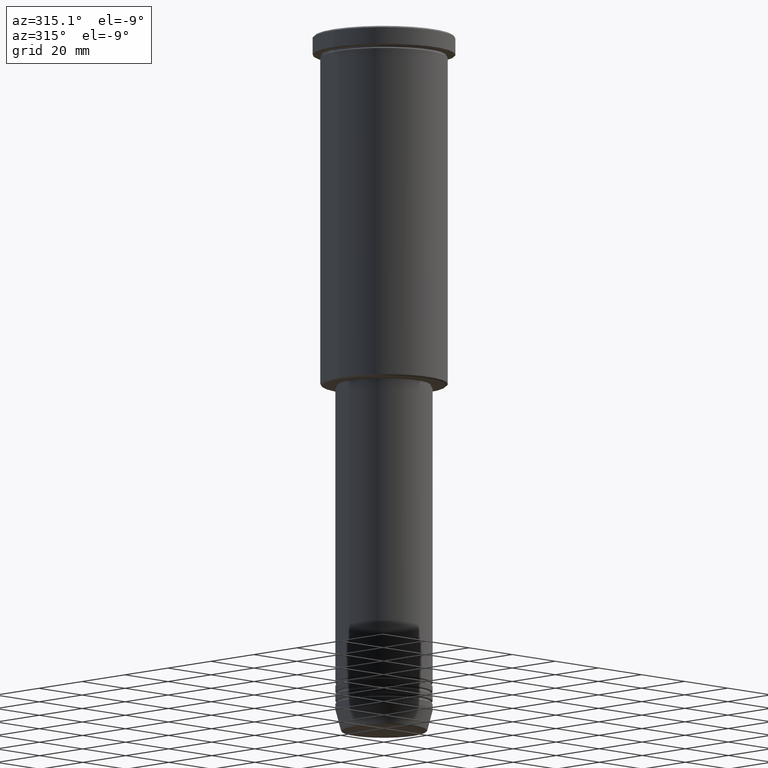
[diagram: clean part render]
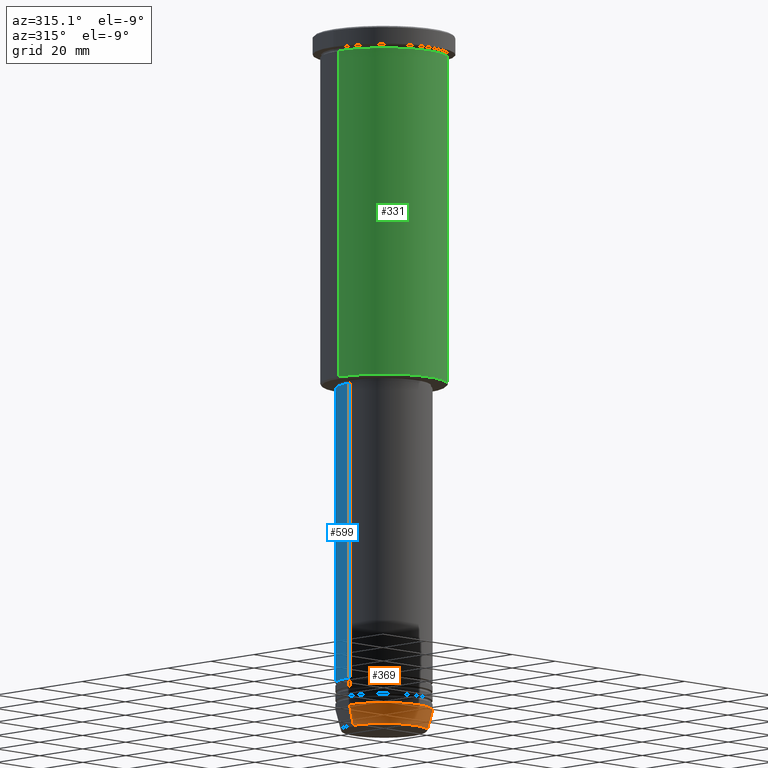
[diagram: same view with three faces highlighted in distinct colors, each labeled with its STEP entity id]
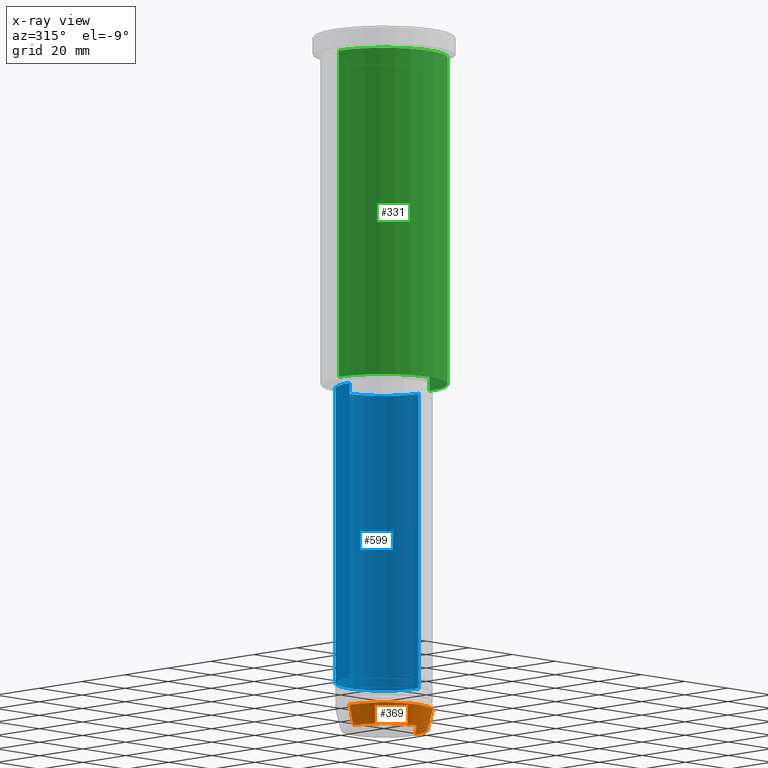
[diagram: x-ray of the same camera — body ghosted, the three highlighted faces saturated]
A machine part, auxiliary view with three faces highlighted in distinct colors.
The next image is the same camera in x-ray (body ghosted, the three faces saturated) — at least one of them is partly hidden behind the body in this view.
Their STEP definitions:

[orange] entity #369 — the highlighted conical surface has half-angle 15 deg.
#12 = VERTEX_POINT ( 'NONE', #18 ) ;
#18 = CARTESIAN_POINT ( 'NONE',  ( 16.00000000000000000, 0.000000000000000000, -224.0000000000000000 ) ) ;
#40 = DIRECTION ( 'NONE',  ( 1.000000000000000000, 0.000000000000000000, 0.000000000000000000 ) ) ;
#50 = DIRECTION ( 'NONE',  ( 0.2588190451025213501, 0.000000000000000000, 0.9659258262890680902 ) ) ;
#79 = EDGE_CURVE ( 'NONE', #115, #342, #787, .T. ) ;
#87 = CARTESIAN_POINT ( 'NONE',  ( -14.22365507213719660, 1.850665122131324126E-15, -230.6294095225512706 ) ) ;
#115 = VERTEX_POINT ( 'NONE', #87 ) ;
#133 = CARTESIAN_POINT ( 'NONE',  ( 0.000000000000000000, 0.000000000000000000, -224.0000000000000000 ) ) ;
#142 = CARTESIAN_POINT ( 'NONE',  ( -16.00000000000000000, 1.959434878635765131E-15, -224.0000000000000000 ) ) ;
#179 = VERTEX_POINT ( 'NONE', #990 ) ;
#243 = DIRECTION ( 'NONE',  ( -0.2588190451025213501, 3.169619151431772337E-17, 0.9659258262890680902 ) ) ;
#303 = VECTOR ( 'NONE', #243, 1000.000000000000000 ) ;
#314 = CARTESIAN_POINT ( 'NONE',  ( 0.000000000000000000, 0.000000000000000000, -224.0000000000000000 ) ) ;
#315 = EDGE_CURVE ( 'NONE', #342, #12, #367, .T. ) ;
#327 = AXIS2_PLACEMENT_3D ( 'NONE', #1039, #406, #40 ) ;
#342 = VERTEX_POINT ( 'NONE', #142 ) ;
#345 = EDGE_CURVE ( 'NONE', #115, #179, #980, .T. ) ;
#367 = CIRCLE ( 'NONE', #904, 16.00000000000000000 ) ;
#369 = ADVANCED_FACE ( 'NONE', ( #500 ), #404, .T. ) ;
#402 = EDGE_CURVE ( 'NONE', #179, #12, #414, .T. ) ;
#404 = CONICAL_SURFACE ( 'NONE', #770, 16.00000000000000000, 0.2617993877991500740 ) ;
#406 = DIRECTION ( 'NONE',  ( -0.000000000000000000, -0.000000000000000000, 1.000000000000000000 ) ) ;
#414 = LINE ( 'NONE', #514, #1033 ) ;
#468 = ORIENTED_EDGE ( 'NONE', *, *, #315, .F. ) ;
#500 = FACE_OUTER_BOUND ( 'NONE', #1014, .T. ) ;
#514 = CARTESIAN_POINT ( 'NONE',  ( 16.00000000000000000, 0.000000000000000000, -224.0000000000000000 ) ) ;
#577 = DIRECTION ( 'NONE',  ( 1.000000000000000000, 0.000000000000000000, 0.000000000000000000 ) ) ;
#605 = DIRECTION ( 'NONE',  ( -0.000000000000000000, -0.000000000000000000, 1.000000000000000000 ) ) ;
#686 = ORIENTED_EDGE ( 'NONE', *, *, #345, .T. ) ;
#770 = AXIS2_PLACEMENT_3D ( 'NONE', #314, #1117, #577 ) ;
#787 = LINE ( 'NONE', #1146, #303 ) ;
#816 = ORIENTED_EDGE ( 'NONE', *, *, #402, .T. ) ;
#904 = AXIS2_PLACEMENT_3D ( 'NONE', #133, #605, #1046 ) ;
#980 = CIRCLE ( 'NONE', #327, 14.22365507213719660 ) ;
#990 = CARTESIAN_POINT ( 'NONE',  ( 14.22365507213719660, 0.000000000000000000, -230.6294095225512706 ) ) ;
#1014 = EDGE_LOOP ( 'NONE', ( #1095, #686, #816, #468 ) ) ;
#1033 = VECTOR ( 'NONE', #50, 1000.000000000000000 ) ;
#1039 = CARTESIAN_POINT ( 'NONE',  ( 0.000000000000000000, 0.000000000000000000, -230.6294095225512706 ) ) ;
#1046 = DIRECTION ( 'NONE',  ( 1.000000000000000000, 0.000000000000000000, 0.000000000000000000 ) ) ;
#1095 = ORIENTED_EDGE ( 'NONE', *, *, #79, .F. ) ;
#1117 = DIRECTION ( 'NONE',  ( -0.000000000000000000, -0.000000000000000000, 1.000000000000000000 ) ) ;
#1146 = CARTESIAN_POINT ( 'NONE',  ( -16.00000000000000000, 1.959434878635765131E-15, -224.0000000000000000 ) ) ;

[blue] entity #599 — the highlighted cylindrical surface (partial cylindrical patch) has radius 16 mm, axis along (-0, -0, 1).
#47 = VERTEX_POINT ( 'NONE', #1003 ) ;
#116 = VECTOR ( 'NONE', #1015, 1000.000000000000000 ) ;
#141 = DIRECTION ( 'NONE',  ( -0.000000000000000000, -0.000000000000000000, 1.000000000000000000 ) ) ;
#155 = CIRCLE ( 'NONE', #1052, 16.00000000000000000 ) ;
#166 = ORIENTED_EDGE ( 'NONE', *, *, #635, .T. ) ;
#213 = AXIS2_PLACEMENT_3D ( 'NONE', #1069, #240, #694 ) ;
#217 = VERTEX_POINT ( 'NONE', #757 ) ;
#238 = CIRCLE ( 'NONE', #1004, 16.00000000000000000 ) ;
#240 = DIRECTION ( 'NONE',  ( -0.000000000000000000, -0.000000000000000000, 1.000000000000000000 ) ) ;
#281 = EDGE_CURVE ( 'NONE', #47, #914, #155, .T. ) ;
#317 = ORIENTED_EDGE ( 'NONE', *, *, #1139, .F. ) ;
#350 = EDGE_LOOP ( 'NONE', ( #714, #166, #317, #377 ) ) ;
#356 = CARTESIAN_POINT ( 'NONE',  ( -16.00000000000000000, 1.959434878635765131E-15, 0.000000000000000000 ) ) ;
#377 = ORIENTED_EDGE ( 'NONE', *, *, #992, .F. ) ;
#408 = DIRECTION ( 'NONE',  ( 1.000000000000000000, 0.000000000000000000, 0.000000000000000000 ) ) ;
#453 = CYLINDRICAL_SURFACE ( 'NONE', #213, 16.00000000000000000 ) ;
#477 = CARTESIAN_POINT ( 'NONE',  ( 0.000000000000000000, 0.000000000000000000, -117.0000000000000000 ) ) ;
#533 = CARTESIAN_POINT ( 'NONE',  ( 16.00000000000000000, 0.000000000000000000, 0.000000000000000000 ) ) ;
#563 = VECTOR ( 'NONE', #141, 1000.000000000000000 ) ;
#599 = ADVANCED_FACE ( 'NONE', ( #1142 ), #453, .T. ) ;
#635 = EDGE_CURVE ( 'NONE', #914, #217, #722, .T. ) ;
#674 = CARTESIAN_POINT ( 'NONE',  ( -16.00000000000000000, 1.959434878635765131E-15, -214.9999999999999716 ) ) ;
#694 = DIRECTION ( 'NONE',  ( 1.000000000000000000, 0.000000000000000000, 0.000000000000000000 ) ) ;
#707 = CARTESIAN_POINT ( 'NONE',  ( 0.000000000000000000, 0.000000000000000000, -214.9999999999999716 ) ) ;
#714 = ORIENTED_EDGE ( 'NONE', *, *, #281, .T. ) ;
#722 = LINE ( 'NONE', #356, #116 ) ;
#748 = DIRECTION ( 'NONE',  ( 1.000000000000000000, 0.000000000000000000, 0.000000000000000000 ) ) ;
#757 = CARTESIAN_POINT ( 'NONE',  ( -16.00000000000000000, 1.959434878635765131E-15, -117.0000000000000000 ) ) ;
#914 = VERTEX_POINT ( 'NONE', #674 ) ;
#974 = CARTESIAN_POINT ( 'NONE',  ( 16.00000000000000000, 0.000000000000000000, -117.0000000000000000 ) ) ;
#992 = EDGE_CURVE ( 'NONE', #47, #1051, #1159, .T. ) ;
#1003 = CARTESIAN_POINT ( 'NONE',  ( 16.00000000000000000, 0.000000000000000000, -214.9999999999999716 ) ) ;
#1004 = AXIS2_PLACEMENT_3D ( 'NONE', #477, #1111, #748 ) ;
#1015 = DIRECTION ( 'NONE',  ( -0.000000000000000000, -0.000000000000000000, 1.000000000000000000 ) ) ;
#1051 = VERTEX_POINT ( 'NONE', #974 ) ;
#1052 = AXIS2_PLACEMENT_3D ( 'NONE', #707, #1118, #408 ) ;
#1069 = CARTESIAN_POINT ( 'NONE',  ( 0.000000000000000000, 0.000000000000000000, 0.000000000000000000 ) ) ;
#1111 = DIRECTION ( 'NONE',  ( -0.000000000000000000, -0.000000000000000000, 1.000000000000000000 ) ) ;
#1118 = DIRECTION ( 'NONE',  ( -0.000000000000000000, -0.000000000000000000, 1.000000000000000000 ) ) ;
#1139 = EDGE_CURVE ( 'NONE', #1051, #217, #238, .T. ) ;
#1142 = FACE_OUTER_BOUND ( 'NONE', #350, .T. ) ;
#1159 = LINE ( 'NONE', #533, #563 ) ;

[green] entity #331 — the highlighted cylindrical surface (partial cylindrical patch) has radius 21 mm, axis along (-0, -0, 1).
#32 = EDGE_CURVE ( 'NONE', #559, #767, #838, .T. ) ;
#109 = VECTOR ( 'NONE', #1179, 1000.000000000000000 ) ;
#153 = EDGE_CURVE ( 'NONE', #559, #578, #1182, .T. ) ;
#208 = CARTESIAN_POINT ( 'NONE',  ( 21.00000000000000000, 0.000000000000000000, -6.999999999999994671 ) ) ;
#226 = CARTESIAN_POINT ( 'NONE',  ( -21.00000000000000000, 2.571758278209441661E-15, -6.999999999999994671 ) ) ;
#265 = CARTESIAN_POINT ( 'NONE',  ( -21.00000000000000000, 2.571758278209441661E-15, -115.4999999999999858 ) ) ;
#297 = DIRECTION ( 'NONE',  ( -0.000000000000000000, -0.000000000000000000, 1.000000000000000000 ) ) ;
#331 = ADVANCED_FACE ( 'NONE', ( #780 ), #865, .T. ) ;
#376 = ORIENTED_EDGE ( 'NONE', *, *, #829, .F. ) ;
#385 = AXIS2_PLACEMENT_3D ( 'NONE', #966, #886, #640 ) ;
#403 = DIRECTION ( 'NONE',  ( -0.000000000000000000, -0.000000000000000000, 1.000000000000000000 ) ) ;
#450 = AXIS2_PLACEMENT_3D ( 'NONE', #685, #297, #1137 ) ;
#547 = DIRECTION ( 'NONE',  ( -0.000000000000000000, -0.000000000000000000, 1.000000000000000000 ) ) ;
#559 = VERTEX_POINT ( 'NONE', #265 ) ;
#578 = VERTEX_POINT ( 'NONE', #812 ) ;
#596 = CARTESIAN_POINT ( 'NONE',  ( 0.000000000000000000, 0.000000000000000000, -6.999999999999994671 ) ) ;
#623 = VECTOR ( 'NONE', #547, 1000.000000000000000 ) ;
#640 = DIRECTION ( 'NONE',  ( -1.000000000000000000, 0.000000000000000000, 0.000000000000000000 ) ) ;
#647 = LINE ( 'NONE', #1009, #623 ) ;
#685 = CARTESIAN_POINT ( 'NONE',  ( 0.000000000000000000, 0.000000000000000000, 0.000000000000000000 ) ) ;
#695 = CIRCLE ( 'NONE', #1090, 21.00000000000000000 ) ;
#696 = ORIENTED_EDGE ( 'NONE', *, *, #153, .T. ) ;
#745 = EDGE_CURVE ( 'NONE', #578, #1174, #647, .T. ) ;
#747 = CARTESIAN_POINT ( 'NONE',  ( -21.00000000000000000, 2.571758278209441661E-15, 0.000000000000000000 ) ) ;
#767 = VERTEX_POINT ( 'NONE', #226 ) ;
#780 = FACE_OUTER_BOUND ( 'NONE', #868, .T. ) ;
#812 = CARTESIAN_POINT ( 'NONE',  ( 21.00000000000000000, 0.000000000000000000, -115.4999999999999858 ) ) ;
#829 = EDGE_CURVE ( 'NONE', #767, #1174, #695, .T. ) ;
#838 = LINE ( 'NONE', #747, #109 ) ;
#855 = DIRECTION ( 'NONE',  ( 1.000000000000000000, 0.000000000000000000, 0.000000000000000000 ) ) ;
#865 = CYLINDRICAL_SURFACE ( 'NONE', #450, 21.00000000000000000 ) ;
#868 = EDGE_LOOP ( 'NONE', ( #971, #696, #875, #376 ) ) ;
#875 = ORIENTED_EDGE ( 'NONE', *, *, #745, .T. ) ;
#886 = DIRECTION ( 'NONE',  ( -0.000000000000000000, -0.000000000000000000, 1.000000000000000000 ) ) ;
#966 = CARTESIAN_POINT ( 'NONE',  ( 0.000000000000000000, 0.000000000000000000, -115.4999999999999858 ) ) ;
#971 = ORIENTED_EDGE ( 'NONE', *, *, #32, .F. ) ;
#1009 = CARTESIAN_POINT ( 'NONE',  ( 21.00000000000000000, 0.000000000000000000, 0.000000000000000000 ) ) ;
#1090 = AXIS2_PLACEMENT_3D ( 'NONE', #596, #403, #855 ) ;
#1137 = DIRECTION ( 'NONE',  ( 1.000000000000000000, 0.000000000000000000, 0.000000000000000000 ) ) ;
#1174 = VERTEX_POINT ( 'NONE', #208 ) ;
#1179 = DIRECTION ( 'NONE',  ( -0.000000000000000000, -0.000000000000000000, 1.000000000000000000 ) ) ;
#1182 = CIRCLE ( 'NONE', #385, 21.00000000000000000 ) ;